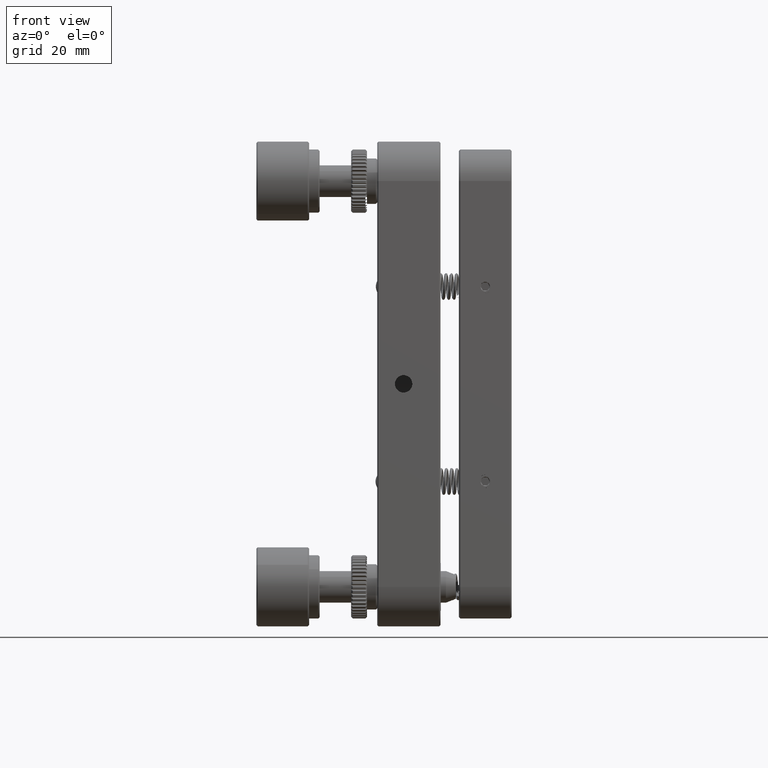
[diagram: clean part render]
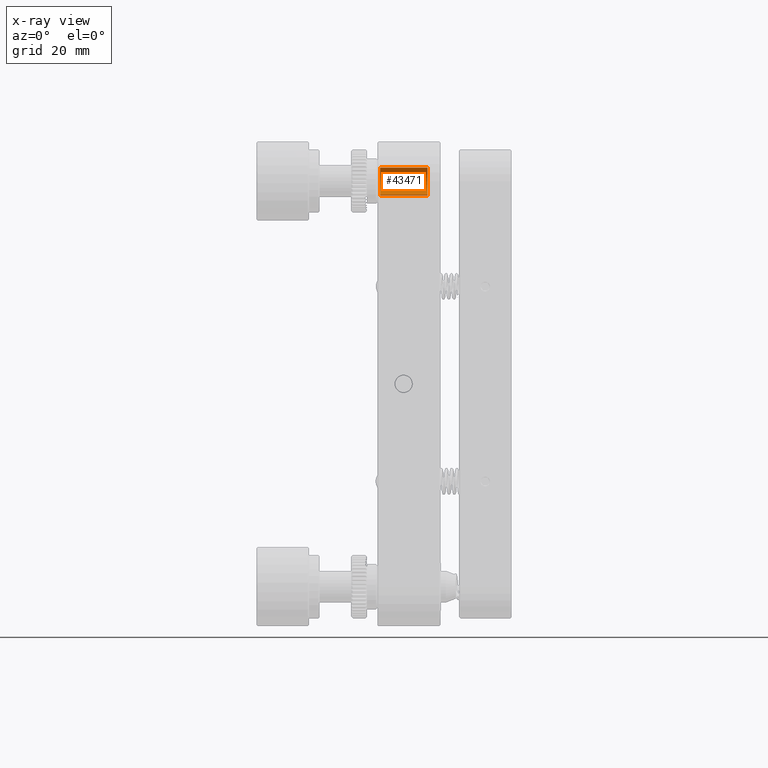
[diagram: x-ray — body ghosted, one internal face saturated and labeled with its STEP entity id]
A machine part, front view, then the same camera in x-ray: the body is ghosted and one INTERNAL B-rep face — a face not visible from any outside direction — is saturated and labeled: STEP entity #43471.
In plain terms, the highlighted cylindrical surface (edge-blend (fillet) strip) has radius 2.75 mm, axis along (-1, 0, 0).
Its self-contained STEP definition (entity closure, byte-faithful):
#465 = CARTESIAN_POINT ( 'NONE',  ( -20.28091008047275068, -45.72424451675429680, 96.05872329584940417 ) ) ;
#4705 = VECTOR ( 'NONE', #57773, 1000.000000000000000 ) ;
#5186 = AXIS2_PLACEMENT_3D ( 'NONE', #89401, #109344, #99651 ) ;
#10129 = FACE_OUTER_BOUND ( 'NONE', #45443, .T. ) ;
#19197 = DIRECTION ( 'NONE',  ( 0.000000000000000000, 0.000000000000000000, 1.000000000000000000 ) ) ;
#19426 = DIRECTION ( 'NONE',  ( -1.000000000000000000, 1.261617073437700136E-15, -1.261617073437700136E-15 ) ) ;
#22077 = CARTESIAN_POINT ( 'NONE',  ( -15.78091008047274890, -45.72424451675429680, 96.05872329584940417 ) ) ;
#31186 = VERTEX_POINT ( 'NONE', #72206 ) ;
#36473 = CARTESIAN_POINT ( 'NONE',  ( -11.28091008047272048, -45.72424451675429680, 96.05872329584930469 ) ) ;
#36969 = CARTESIAN_POINT ( 'NONE',  ( -20.28091008047275068, -46.73193251175950280, 93.50000000000000000 ) ) ;
#38513 = CARTESIAN_POINT ( 'NONE',  ( -11.28091008047272048, -47.73962050676470170, 90.94127670415069531 ) ) ;
#38709 = EDGE_CURVE ( 'NONE', #55868, #84514, #85597, .T. ) ;
#43471 = ADVANCED_FACE ( 'NONE', ( #10129 ), #102001, .F. ) ;
#45443 = EDGE_LOOP ( 'NONE', ( #111988, #78083, #79071, #53664 ) ) ;
#45582 = EDGE_CURVE ( 'NONE', #31186, #111255, #100871, .T. ) ;
#46284 = AXIS2_PLACEMENT_3D ( 'NONE', #36969, #19426, #55704 ) ;
#46983 = VECTOR ( 'NONE', #100284, 1000.000000000000000 ) ;
#53664 = ORIENTED_EDGE ( 'NONE', *, *, #73636, .T. ) ;
#55704 = DIRECTION ( 'NONE',  ( -1.261617073437702306E-15, 0.000000000000000000, 1.000000000000000000 ) ) ;
#55868 = VERTEX_POINT ( 'NONE', #36473 ) ;
#57773 = DIRECTION ( 'NONE',  ( -1.000000000000000000, 0.000000000000000000, 0.000000000000000000 ) ) ;
#61219 = CIRCLE ( 'NONE', #5186, 2.749999999999946709 ) ;
#67412 = EDGE_CURVE ( 'NONE', #111255, #55868, #61219, .T. ) ;
#69431 = CIRCLE ( 'NONE', #46284, 2.749999999999946709 ) ;
#72206 = CARTESIAN_POINT ( 'NONE',  ( -20.28091008047275068, -47.73962050676470170, 90.94127670415069531 ) ) ;
#73636 = EDGE_CURVE ( 'NONE', #84514, #31186, #69431, .T. ) ;
#78083 = ORIENTED_EDGE ( 'NONE', *, *, #67412, .T. ) ;
#79071 = ORIENTED_EDGE ( 'NONE', *, *, #38709, .T. ) ;
#84514 = VERTEX_POINT ( 'NONE', #465 ) ;
#85597 = LINE ( 'NONE', #22077, #4705 ) ;
#87389 = AXIS2_PLACEMENT_3D ( 'NONE', #108731, #100829, #19197 ) ;
#89401 = CARTESIAN_POINT ( 'NONE',  ( -11.28091008047272048, -46.73193251175950280, 93.50000000000000000 ) ) ;
#91219 = CARTESIAN_POINT ( 'NONE',  ( -15.78091008047274890, -47.73962050676470170, 90.94127670415069531 ) ) ;
#99651 = DIRECTION ( 'NONE',  ( 6.308085367188511528E-16, 0.000000000000000000, -1.000000000000000000 ) ) ;
#100284 = DIRECTION ( 'NONE',  ( 1.000000000000000000, 0.000000000000000000, 0.000000000000000000 ) ) ;
#100829 = DIRECTION ( 'NONE',  ( -1.000000000000000000, 0.000000000000000000, 0.000000000000000000 ) ) ;
#100871 = LINE ( 'NONE', #91219, #46983 ) ;
#102001 = CYLINDRICAL_SURFACE ( 'NONE', #87389, 2.749999999999960920 ) ;
#108731 = CARTESIAN_POINT ( 'NONE',  ( -10.37971008047272115, -46.73193251175950280, 93.50000000000000000 ) ) ;
#109344 = DIRECTION ( 'NONE',  ( 1.000000000000000000, -6.308085367188449406E-16, 6.308085367188499695E-16 ) ) ;
#111255 = VERTEX_POINT ( 'NONE', #38513 ) ;
#111988 = ORIENTED_EDGE ( 'NONE', *, *, #45582, .T. ) ;